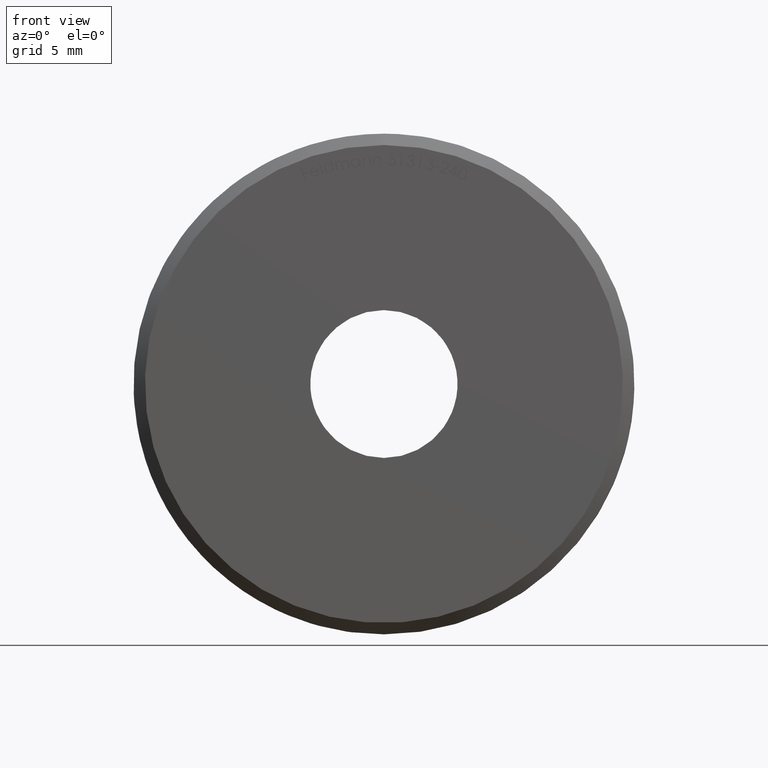
[diagram: clean part render]
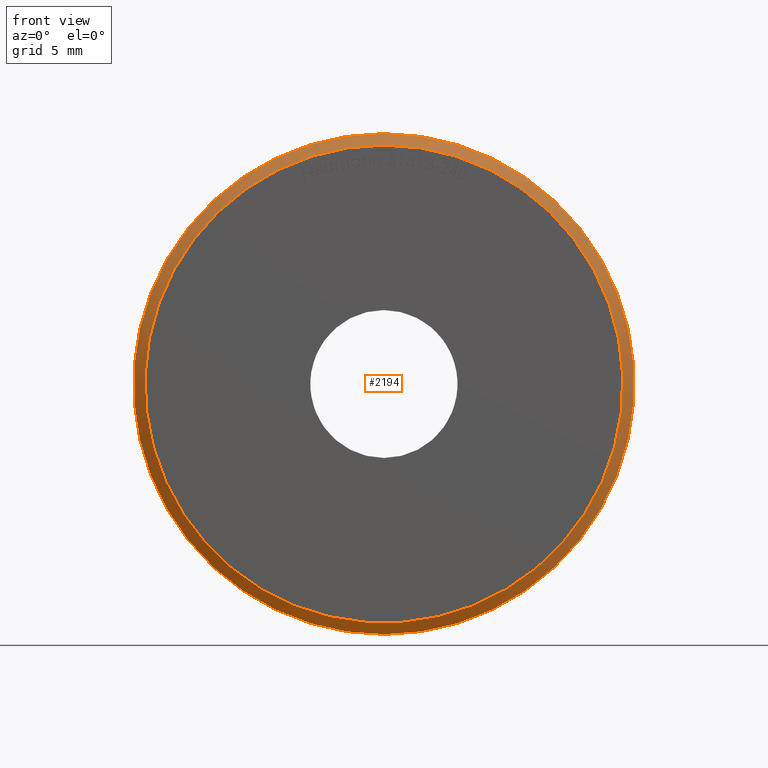
[diagram: same view with one face highlighted and labeled with its STEP entity id]
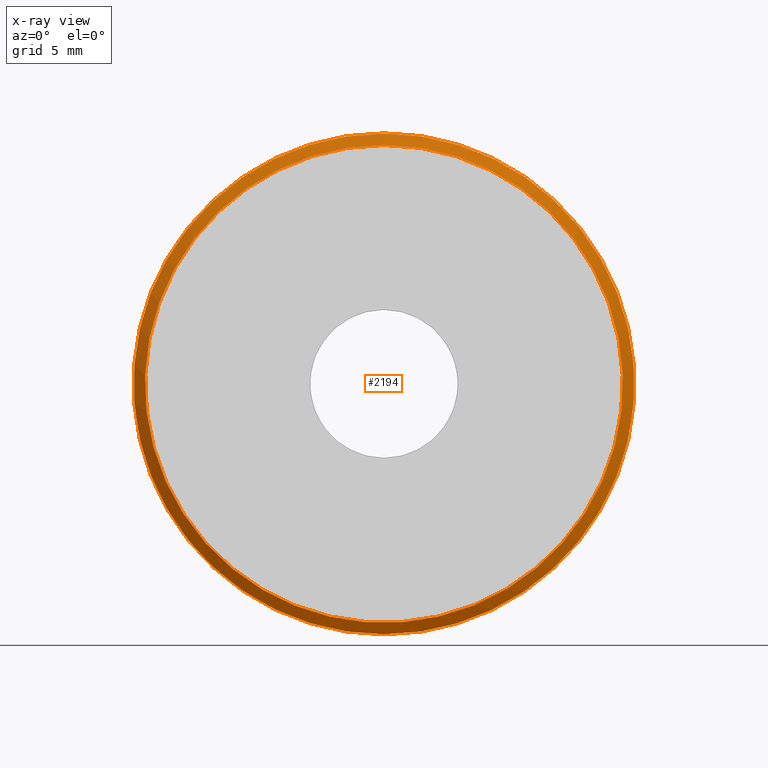
[diagram: x-ray of the same camera — body ghosted, the highlighted face saturated]
A machine part, front view. The second image highlights one B-rep face of the part: STEP entity #2194.
The next image is the same camera in x-ray: the body ghosted, the highlighted face saturated — about 0% of this face is hidden behind the body in this view.
In plain terms, the highlighted conical surface has half-angle 45 deg.
Its self-contained STEP definition (entity closure, byte-faithful):
#26 = EDGE_CURVE ( 'NONE', #4798, #4798, #196, .T. ) ;
#196 = CIRCLE ( 'NONE', #12271, 10.49999999999999822 ) ;
#730 = EDGE_LOOP ( 'NONE', ( #8765 ) ) ;
#1408 = CARTESIAN_POINT ( 'NONE',  ( 0.000000000000000000, 0.000000000000000000, 0.000000000000000000 ) ) ;
#1524 = CONICAL_SURFACE ( 'NONE', #9414, 11.00000000000000000, 0.7853981633974536081 ) ;
#1827 = FACE_BOUND ( 'NONE', #730, .T. ) ;
#2121 = VERTEX_POINT ( 'NONE', #2736 ) ;
#2194 = ADVANCED_FACE ( 'NONE', ( #1827, #11129 ), #1524, .T. ) ;
#2721 = EDGE_CURVE ( 'NONE', #2121, #2121, #4227, .T. ) ;
#2736 = CARTESIAN_POINT ( 'NONE',  ( 0.000000000000000000, 0.4999999999999952260, 11.00000000000000000 ) ) ;
#3787 = DIRECTION ( 'NONE',  ( -0.000000000000000000, 1.000000000000000000, -0.000000000000000000 ) ) ;
#4227 = CIRCLE ( 'NONE', #4417, 11.00000000000000000 ) ;
#4417 = AXIS2_PLACEMENT_3D ( 'NONE', #7674, #3787, #6620 ) ;
#4798 = VERTEX_POINT ( 'NONE', #9420 ) ;
#4993 = DIRECTION ( 'NONE',  ( -0.000000000000000000, 1.000000000000000000, -0.000000000000000000 ) ) ;
#5158 = DIRECTION ( 'NONE',  ( 0.000000000000000000, 0.000000000000000000, 1.000000000000000000 ) ) ;
#5841 = ORIENTED_EDGE ( 'NONE', *, *, #2721, .F. ) ;
#6620 = DIRECTION ( 'NONE',  ( 0.000000000000000000, 0.000000000000000000, 1.000000000000000000 ) ) ;
#7674 = CARTESIAN_POINT ( 'NONE',  ( 0.000000000000000000, 0.4999999999999952260, 0.000000000000000000 ) ) ;
#8023 = DIRECTION ( 'NONE',  ( -0.000000000000000000, -1.000000000000000000, -0.000000000000000000 ) ) ;
#8765 = ORIENTED_EDGE ( 'NONE', *, *, #26, .F. ) ;
#8825 = EDGE_LOOP ( 'NONE', ( #5841 ) ) ;
#8826 = CARTESIAN_POINT ( 'NONE',  ( 0.000000000000000000, 0.4999999999999952260, 0.000000000000000000 ) ) ;
#9414 = AXIS2_PLACEMENT_3D ( 'NONE', #8826, #4993, #5158 ) ;
#9420 = CARTESIAN_POINT ( 'NONE',  ( 0.000000000000000000, 0.000000000000000000, 10.49999999999999822 ) ) ;
#11129 = FACE_OUTER_BOUND ( 'NONE', #8825, .T. ) ;
#11853 = DIRECTION ( 'NONE',  ( 0.000000000000000000, 0.000000000000000000, 1.000000000000000000 ) ) ;
#12271 = AXIS2_PLACEMENT_3D ( 'NONE', #1408, #8023, #11853 ) ;